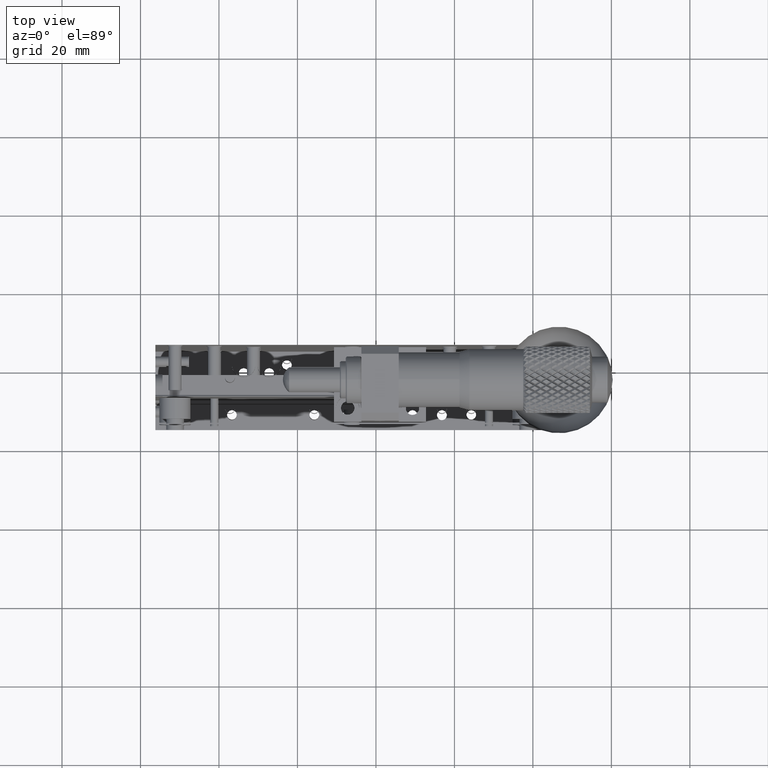
[diagram: clean part render]
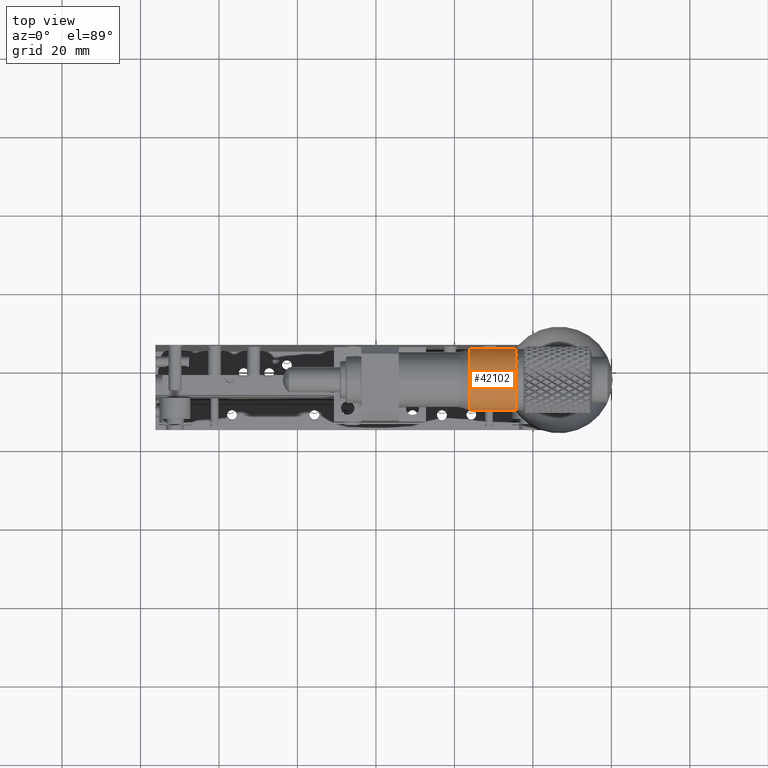
[diagram: same view with one face highlighted and labeled with its STEP entity id]
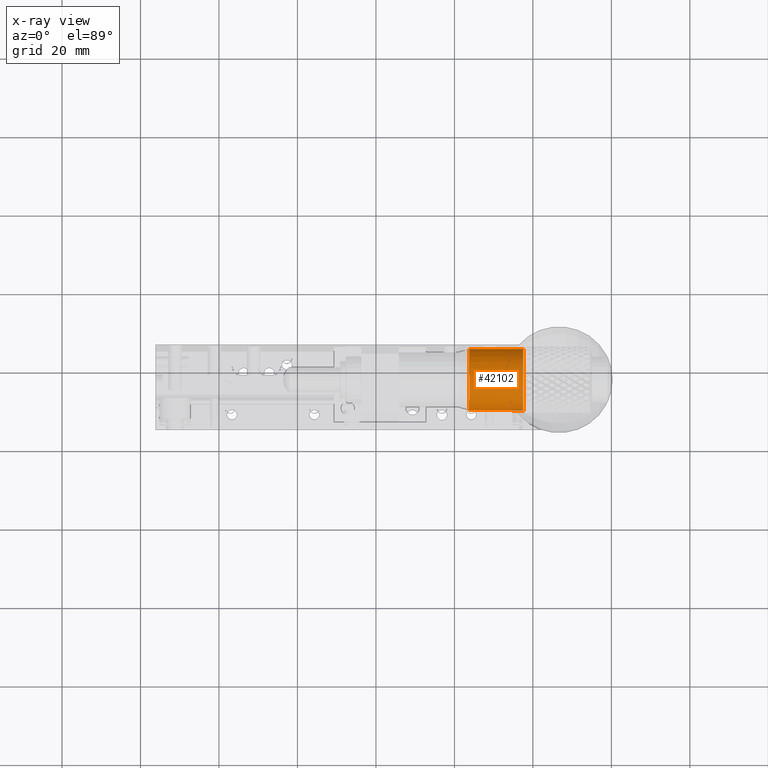
[diagram: x-ray of the same camera — body ghosted, the highlighted face saturated]
A machine part, top view. The second image highlights one B-rep face of the part: STEP entity #42102.
The next image is the same camera in x-ray: the body ghosted, the highlighted face saturated — about 0% of this face is hidden behind the body in this view.
In plain terms, the highlighted cylindrical surface (bore or boss wall) has radius 7.8221 mm, axis along (-1, 0, 0).
Its self-contained STEP definition (entity closure, byte-faithful):
#462 = VERTEX_POINT ( 'NONE', #5882 ) ;
#802 = VERTEX_POINT ( 'NONE', #19668 ) ;
#1454 = CARTESIAN_POINT ( 'NONE',  ( 57.55369935356767996, 0.4337154785879657748, 60.54961840201269752 ) ) ;
#1654 = CIRCLE ( 'NONE', #18806, 7.822099999981449336 ) ;
#1799 = VERTEX_POINT ( 'NONE', #6834 ) ;
#2249 = CARTESIAN_POINT ( 'NONE',  ( 57.55369935356767996, 3.807587904270797630, 67.60668813844910119 ) ) ;
#2416 = CARTESIAN_POINT ( 'NONE',  ( 57.55369935356768707, -10.65669464671202249, 71.09306715424322931 ) ) ;
#2504 = DIRECTION ( 'NONE',  ( 0.000000000000000000, 0.3818493186865933864, -0.9242245927363026414 ) ) ;
#2667 = CARTESIAN_POINT ( 'NONE',  ( 57.55369935355760447, -3.990949976602917282, 67.00001250000005371 ) ) ;
#2748 = CIRCLE ( 'NONE', #35576, 7.822099999981449336 ) ;
#2983 = AXIS2_PLACEMENT_3D ( 'NONE', #91526, #46005, #2504 ) ;
#3017 = CARTESIAN_POINT ( 'NONE',  ( 57.55369935356767996, -9.943504660300996889, 61.92533604259968172 ) ) ;
#3818 = DIRECTION ( 'NONE',  ( 0.000000000000000000, -0.3818493186865933864, 0.9242245927363026414 ) ) ;
#4135 = VERTEX_POINT ( 'NONE', #6784 ) ;
#4448 = EDGE_CURVE ( 'NONE', #26956, #26956, #60399, .T. ) ;
#4508 = DIRECTION ( 'NONE',  ( 0.000000000000000000, 0.3818493186865933864, -0.9242245927363026414 ) ) ;
#4941 = AXIS2_PLACEMENT_3D ( 'NONE', #46284, #32144, #47253 ) ;
#5686 = EDGE_CURVE ( 'NONE', #74095, #65963, #66708, .T. ) ;
#5882 = CARTESIAN_POINT ( 'NONE',  ( 57.55369935356768707, -11.74520605177912103, 68.02800137654621437 ) ) ;
#6118 = ORIENTED_EDGE ( 'NONE', *, *, #96749, .F. ) ;
#6146 = CIRCLE ( 'NONE', #54489, 7.822099999981449336 ) ;
#6784 = CARTESIAN_POINT ( 'NONE',  ( 57.55369935356767996, -7.364822402285803093, 59.94294276356362872 ) ) ;
#6834 = CARTESIAN_POINT ( 'NONE',  ( 57.55369935356768707, -2.158052059360662689, 74.60433585153364788 ) ) ;
#6976 = EDGE_CURVE ( 'NONE', #7968, #70728, #29211, .T. ) ;
#6978 = EDGE_CURVE ( 'NONE', #79488, #1799, #83849, .T. ) ;
#7159 = DIRECTION ( 'NONE',  ( 1.000000000000000000, -2.318699126153318340E-17, -6.634309868688037287E-17 ) ) ;
#7968 = VERTEX_POINT ( 'NONE', #35409 ) ;
#8277 = AXIS2_PLACEMENT_3D ( 'NONE', #55827, #10872, #93029 ) ;
#8501 = ORIENTED_EDGE ( 'NONE', *, *, #62010, .F. ) ;
#8804 = FACE_OUTER_BOUND ( 'NONE', #74658, .T. ) ;
#8913 = CARTESIAN_POINT ( 'NONE',  ( 57.55369935356768707, 0.7764425428819973218, 73.20140081027932411 ) ) ;
#9008 = DIRECTION ( 'NONE',  ( 1.000000000000000000, -2.318699126153318340E-17, -6.634309868688037287E-17 ) ) ;
#9079 = DIRECTION ( 'NONE',  ( 0.000000000000000000, 0.3818493186865933864, -0.9242245927363026414 ) ) ;
#9753 = EDGE_CURVE ( 'NONE', #802, #87905, #16843, .T. ) ;
#10567 = DIRECTION ( 'NONE',  ( 1.000000000000000000, -2.318699126153318340E-17, -6.634309868688037287E-17 ) ) ;
#10872 = DIRECTION ( 'NONE',  ( 1.000000000000000000, -2.318699126153318340E-17, -6.634309868688037287E-17 ) ) ;
#11322 = CIRCLE ( 'NONE', #8277, 7.822099999981449336 ) ;
#12266 = DIRECTION ( 'NONE',  ( 0.000000000000000000, 0.3818493186865933864, -0.9242245927363026414 ) ) ;
#12763 = CIRCLE ( 'NONE', #4941, 7.822099999981449336 ) ;
#13099 = DIRECTION ( 'NONE',  ( 1.000000000000000000, -2.318699126153318340E-17, -6.634309868688037287E-17 ) ) ;
#13372 = CARTESIAN_POINT ( 'NONE',  ( 57.55369935355760447, -3.990949976602917282, 67.00001250000005371 ) ) ;
#13384 = CARTESIAN_POINT ( 'NONE',  ( 57.55369935355760447, -3.990949976602917282, 67.00001250000005371 ) ) ;
#13885 = DIRECTION ( 'NONE',  ( 0.000000000000000000, 0.3818493186865933864, -0.9242245927363026414 ) ) ;
#14164 = ORIENTED_EDGE ( 'NONE', *, *, #55821, .F. ) ;
#14454 = CARTESIAN_POINT ( 'NONE',  ( 57.55369935355760447, -3.990949976602917282, 67.00001250000005371 ) ) ;
#14542 = EDGE_CURVE ( 'NONE', #18816, #62886, #51292, .T. ) ;
#14876 = ORIENTED_EDGE ( 'NONE', *, *, #5686, .F. ) ;
#15401 = DIRECTION ( 'NONE',  ( 1.000000000000000000, -2.318699126153318340E-17, -6.634309868688037287E-17 ) ) ;
#15501 = DIRECTION ( 'NONE',  ( 0.000000000000000000, 0.3818493186865933864, -0.9242245927363026414 ) ) ;
#15521 = CARTESIAN_POINT ( 'NONE',  ( 57.55369935355760447, -3.990949976602917282, 67.00001250000005371 ) ) ;
#15530 = EDGE_CURVE ( 'NONE', #53095, #45606, #6146, .T. ) ;
#15778 = AXIS2_PLACEMENT_3D ( 'NONE', #80972, #34057, #71733 ) ;
#15868 = CARTESIAN_POINT ( 'NONE',  ( 57.55369935355760447, -3.990949976602917282, 67.00001250000005371 ) ) ;
#15987 = VERTEX_POINT ( 'NONE', #67982 ) ;
#16299 = CARTESIAN_POINT ( 'NONE',  ( 57.55369935355760447, -3.990949976602917282, 67.00001250000005371 ) ) ;
#16329 = DIRECTION ( 'NONE',  ( 1.000000000000000000, -2.318699126153318340E-17, -6.634309868688037287E-17 ) ) ;
#16843 = CIRCLE ( 'NONE', #48041, 7.822099999981449336 ) ;
#16848 = EDGE_CURVE ( 'NONE', #78755, #93926, #56113, .T. ) ;
#17050 = ORIENTED_EDGE ( 'NONE', *, *, #40417, .F. ) ;
#17338 = AXIS2_PLACEMENT_3D ( 'NONE', #13372, #95064, #28060 ) ;
#17818 = CARTESIAN_POINT ( 'NONE',  ( 57.55369935356767996, -10.86851162131018356, 63.27383560766645587 ) ) ;
#18806 = AXIS2_PLACEMENT_3D ( 'NONE', #14454, #75075, #37411 ) ;
#18816 = VERTEX_POINT ( 'NONE', #31908 ) ;
#19668 = CARTESIAN_POINT ( 'NONE',  ( 57.55369935356768707, -11.78948785747660466, 66.39333686155093517 ) ) ;
#20033 = DIRECTION ( 'NONE',  ( 0.000000000000000000, 0.3818493186865933864, -0.9242245927363026414 ) ) ;
#20117 = DIRECTION ( 'NONE',  ( 0.000000000000000000, 0.3818493186865933864, -0.9242245927363026414 ) ) ;
#21766 = EDGE_CURVE ( 'NONE', #62886, #47619, #73544, .T. ) ;
#22231 = AXIS2_PLACEMENT_3D ( 'NONE', #61610, #24448, #83632 ) ;
#22727 = DIRECTION ( 'NONE',  ( 0.000000000000000000, 0.3818493186865933864, -0.9242245927363026414 ) ) ;
#23331 = DIRECTION ( 'NONE',  ( 1.000000000000000000, -2.318699126153318340E-17, -6.634309868688037287E-17 ) ) ;
#24448 = DIRECTION ( 'NONE',  ( 1.000000000000000000, -2.318699126153318340E-17, -6.634309868688037287E-17 ) ) ;
#25577 = CARTESIAN_POINT ( 'NONE',  ( 57.55369935355760447, -3.990949976602917282, 67.00001250000005371 ) ) ;
#26680 = CIRCLE ( 'NONE', #86009, 7.822099999981449336 ) ;
#26822 = DIRECTION ( 'NONE',  ( 1.000000000000000000, -2.318699126153318340E-17, -6.634309868688037287E-17 ) ) ;
#26956 = VERTEX_POINT ( 'NONE', #63138 ) ;
#27355 = CARTESIAN_POINT ( 'NONE',  ( 57.55369935356768707, -3.779133002004747777, 74.81924404657682715 ) ) ;
#27905 = EDGE_CURVE ( 'NONE', #67011, #74095, #92274, .T. ) ;
#28060 = DIRECTION ( 'NONE',  ( 0.000000000000000000, 0.3818493186865933864, -0.9242245927363026414 ) ) ;
#28513 = EDGE_CURVE ( 'NONE', #462, #802, #26680, .T. ) ;
#28792 = CARTESIAN_POINT ( 'NONE',  ( 57.55369935356767996, 3.380126093341670135, 64.38228715520155276 ) ) ;
#28914 = CARTESIAN_POINT ( 'NONE',  ( 57.55369935356768707, -6.977813532294232957, 74.22938968682551319 ) ) ;
#29211 = CIRCLE ( 'NONE', #82323, 7.822099999981449336 ) ;
#30124 = ORIENTED_EDGE ( 'NONE', *, *, #74844, .F. ) ;
#30143 = ORIENTED_EDGE ( 'NONE', *, *, #39739, .F. ) ;
#30172 = CARTESIAN_POINT ( 'NONE',  ( 57.55369935355760447, -3.990949976602917282, 67.00001250000005371 ) ) ;
#30460 = EDGE_CURVE ( 'NONE', #92439, #89317, #72068, .T. ) ;
#30623 = CIRCLE ( 'NONE', #68139, 7.822099999981449336 ) ;
#31130 = ORIENTED_EDGE ( 'NONE', *, *, #15530, .F. ) ;
#31602 = DIRECTION ( 'NONE',  ( 1.000000000000000000, -2.318699126153318340E-17, -6.634309868688037287E-17 ) ) ;
#31841 = DIRECTION ( 'NONE',  ( 0.000000000000000000, 0.3818493186865933864, -0.9242245927363026414 ) ) ;
#31908 = CARTESIAN_POINT ( 'NONE',  ( 57.55369935356768707, -9.660038219001068072, 72.38951033464221041 ) ) ;
#31950 = EDGE_CURVE ( 'NONE', #39076, #15987, #12763, .T. ) ;
#32144 = DIRECTION ( 'NONE',  ( 1.000000000000000000, -2.318699126153318340E-17, -6.634309868688037287E-17 ) ) ;
#32248 = CARTESIAN_POINT ( 'NONE',  ( 14.00369935356768458, -3.990949976602917282, 67.00001250000006792 ) ) ;
#32568 = CARTESIAN_POINT ( 'NONE',  ( 57.55369935355760447, -3.990949976602917282, 67.00001250000005371 ) ) ;
#34057 = DIRECTION ( 'NONE',  ( 1.000000000000000000, -2.318699126153318340E-17, -6.634309868688037287E-17 ) ) ;
#35022 = DIRECTION ( 'NONE',  ( 0.000000000000000000, 0.3818493186865933864, -0.9242245927363026414 ) ) ;
#35129 = EDGE_CURVE ( 'NONE', #1799, #67690, #93655, .T. ) ;
#35409 = CARTESIAN_POINT ( 'NONE',  ( 57.55369935356767996, 1.678138265795242168, 61.61051466535788279 ) ) ;
#35576 = AXIS2_PLACEMENT_3D ( 'NONE', #90706, #9008, #22727 ) ;
#35580 = CARTESIAN_POINT ( 'NONE',  ( 57.55369935355760447, -3.990949976602917282, 67.00001250000005371 ) ) ;
#35729 = AXIS2_PLACEMENT_3D ( 'NONE', #16299, #46059, #75942 ) ;
#37320 = DIRECTION ( 'NONE',  ( 0.000000000000000000, 0.3818493186865933864, -0.9242245927363026414 ) ) ;
#37339 = CIRCLE ( 'NONE', #2983, 7.822099999981449336 ) ;
#37400 = DIRECTION ( 'NONE',  ( 0.000000000000000000, 0.3818493186865933864, -0.9242245927363026414 ) ) ;
#37411 = DIRECTION ( 'NONE',  ( 0.000000000000000000, 0.3818493186865933864, -0.9242245927363026414 ) ) ;
#37450 = CARTESIAN_POINT ( 'NONE',  ( 57.55369935356768707, -11.36202604654746828, 69.61773784479849780 ) ) ;
#37513 = VERTEX_POINT ( 'NONE', #8913 ) ;
#37582 = CARTESIAN_POINT ( 'NONE',  ( 57.55369935356768707, -5.409471362849379794, 74.69241430219884137 ) ) ;
#38578 = DIRECTION ( 'NONE',  ( 0.000000000000000000, 0.3818493186865933864, -0.9242245927363026414 ) ) ;
#38611 = CYLINDRICAL_SURFACE ( 'NONE', #82984, 7.822100000000000719 ) ;
#38948 = AXIS2_PLACEMENT_3D ( 'NONE', #81016, #64053, #96672 ) ;
#39076 = VERTEX_POINT ( 'NONE', #74551 ) ;
#39431 = AXIS2_PLACEMENT_3D ( 'NONE', #2667, #55454, #83878 ) ;
#39499 = ORIENTED_EDGE ( 'NONE', *, *, #35129, .F. ) ;
#39739 = EDGE_CURVE ( 'NONE', #93926, #37513, #1654, .T. ) ;
#40417 = EDGE_CURVE ( 'NONE', #53582, #87143, #50037, .T. ) ;
#40745 = AXIS2_PLACEMENT_3D ( 'NONE', #54793, #84639, #31841 ) ;
#41108 = CIRCLE ( 'NONE', #42669, 7.822099999981449336 ) ;
#41452 = CARTESIAN_POINT ( 'NONE',  ( 43.81269935356769452, -3.990949976602917282, 67.00001250000005371 ) ) ;
#41657 = EDGE_CURVE ( 'NONE', #70115, #92439, #57962, .T. ) ;
#42102 = ADVANCED_FACE ( 'NONE', ( #92409, #8804 ), #38611, .T. ) ;
#42669 = AXIS2_PLACEMENT_3D ( 'NONE', #90858, #84924, #69795 ) ;
#43360 = ORIENTED_EDGE ( 'NONE', *, *, #72200, .F. ) ;
#43400 = AXIS2_PLACEMENT_3D ( 'NONE', #68227, #15401, #37400 ) ;
#43439 = CARTESIAN_POINT ( 'NONE',  ( 57.55369935356767996, -8.758342496087877294, 60.79862418972075488 ) ) ;
#44019 = CARTESIAN_POINT ( 'NONE',  ( 57.55369935356767996, 2.674794693506143073, 62.90695784575681415 ) ) ;
#45606 = VERTEX_POINT ( 'NONE', #3017 ) ;
#46005 = DIRECTION ( 'NONE',  ( 1.000000000000000000, -2.318699126153318340E-17, -6.634309868688037287E-17 ) ) ;
#46059 = DIRECTION ( 'NONE',  ( 1.000000000000000000, -2.318699126153318340E-17, -6.634309868688037287E-17 ) ) ;
#46091 = DIRECTION ( 'NONE',  ( 0.000000000000000000, 0.3818493186865933864, -0.9242245927363026414 ) ) ;
#46284 = CARTESIAN_POINT ( 'NONE',  ( 57.55369935355760447, -3.990949976602917282, 67.00001250000005371 ) ) ;
#46707 = DIRECTION ( 'NONE',  ( 0.000000000000000000, 0.3818493186865933864, -0.9242245927363026414 ) ) ;
#47119 = EDGE_CURVE ( 'NONE', #37513, #79488, #59665, .T. ) ;
#47215 = CIRCLE ( 'NONE', #39431, 7.822099999981449336 ) ;
#47253 = DIRECTION ( 'NONE',  ( 0.000000000000000000, 0.3818493186865933864, -0.9242245927363026414 ) ) ;
#47619 = VERTEX_POINT ( 'NONE', #37450 ) ;
#48041 = AXIS2_PLACEMENT_3D ( 'NONE', #15521, #23331, #91757 ) ;
#49550 = AXIS2_PLACEMENT_3D ( 'NONE', #56757, #86606, #65574 ) ;
#49754 = CARTESIAN_POINT ( 'NONE',  ( 57.55369935356768707, -0.6170775509201127385, 74.05708223643648580 ) ) ;
#49792 = CARTESIAN_POINT ( 'NONE',  ( 57.55369935356767996, 3.511036183037514746, 69.21483801689142012 ) ) ;
#50037 = CIRCLE ( 'NONE', #15778, 7.822099999981449336 ) ;
#50947 = AXIS2_PLACEMENT_3D ( 'NONE', #41452, #71327, #3818 ) ;
#51020 = ORIENTED_EDGE ( 'NONE', *, *, #65974, .F. ) ;
#51176 = ORIENTED_EDGE ( 'NONE', *, *, #84071, .F. ) ;
#51262 = DIRECTION ( 'NONE',  ( 1.000000000000000000, -2.318699126153318340E-17, -6.634309868688037287E-17 ) ) ;
#51292 = CIRCLE ( 'NONE', #35729, 7.822099999981449336 ) ;
#51453 = AXIS2_PLACEMENT_3D ( 'NONE', #56787, #57268, #20117 ) ;
#51822 = DIRECTION ( 'NONE',  ( 1.000000000000000000, -2.318699126153318340E-17, -6.634309868688037287E-17 ) ) ;
#52041 = ORIENTED_EDGE ( 'NONE', *, *, #77789, .F. ) ;
#52117 = CARTESIAN_POINT ( 'NONE',  ( 57.55369935355760447, -3.990949976602917282, 67.00001250000005371 ) ) ;
#52199 = CIRCLE ( 'NONE', #80360, 7.822099999981449336 ) ;
#53095 = VERTEX_POINT ( 'NONE', #17818 ) ;
#53582 = VERTEX_POINT ( 'NONE', #28914 ) ;
#54236 = DIRECTION ( 'NONE',  ( 0.000000000000000000, -0.3818493186865933864, 0.9242245927363026414 ) ) ;
#54416 = EDGE_CURVE ( 'NONE', #69426, #4135, #64380, .T. ) ;
#54489 = AXIS2_PLACEMENT_3D ( 'NONE', #52117, #7159, #9079 ) ;
#54653 = ORIENTED_EDGE ( 'NONE', *, *, #31950, .F. ) ;
#54793 = CARTESIAN_POINT ( 'NONE',  ( 57.55369935355760447, -3.990949976602917282, 67.00001250000005371 ) ) ;
#55454 = DIRECTION ( 'NONE',  ( 1.000000000000000000, -2.318699126153318340E-17, -6.634309868688037287E-17 ) ) ;
#55821 = EDGE_CURVE ( 'NONE', #89317, #7968, #47215, .T. ) ;
#55827 = CARTESIAN_POINT ( 'NONE',  ( 57.55369935355760447, -3.990949976602917282, 67.00001250000005371 ) ) ;
#56005 = CIRCLE ( 'NONE', #62289, 7.822099999981449336 ) ;
#56113 = CIRCLE ( 'NONE', #38948, 7.822099999981449336 ) ;
#56237 = EDGE_CURVE ( 'NONE', #4135, #39076, #11322, .T. ) ;
#56757 = CARTESIAN_POINT ( 'NONE',  ( 57.55369935355760447, -3.990949976602917282, 67.00001250000005371 ) ) ;
#56787 = CARTESIAN_POINT ( 'NONE',  ( 57.55369935355760447, -3.990949976602917282, 67.00001250000005371 ) ) ;
#57268 = DIRECTION ( 'NONE',  ( 1.000000000000000000, -2.318699126153318340E-17, -6.634309868688037287E-17 ) ) ;
#57500 = EDGE_CURVE ( 'NONE', #70728, #67011, #41108, .T. ) ;
#57551 = AXIS2_PLACEMENT_3D ( 'NONE', #15868, #16329, #46091 ) ;
#57962 = CIRCLE ( 'NONE', #17338, 7.822099999981449336 ) ;
#58165 = VERTEX_POINT ( 'NONE', #49792 ) ;
#59193 = CARTESIAN_POINT ( 'NONE',  ( 57.55369935355760447, -3.990949976602917282, 67.00001250000005371 ) ) ;
#59665 = CIRCLE ( 'NONE', #65969, 7.822099999981449336 ) ;
#60399 = CIRCLE ( 'NONE', #50947, 7.822100000000000719 ) ;
#60821 = ORIENTED_EDGE ( 'NONE', *, *, #57500, .F. ) ;
#61610 = CARTESIAN_POINT ( 'NONE',  ( 57.55369935355760447, -3.990949976602917282, 67.00001250000005371 ) ) ;
#62010 = EDGE_CURVE ( 'NONE', #65963, #58165, #52199, .T. ) ;
#62289 = AXIS2_PLACEMENT_3D ( 'NONE', #66547, #96352, #38578 ) ;
#62886 = VERTEX_POINT ( 'NONE', #2416 ) ;
#63138 = CARTESIAN_POINT ( 'NONE',  ( 43.81269935356769452, -6.977813532301319732, 74.22938968684267991 ) ) ;
#64053 = DIRECTION ( 'NONE',  ( 1.000000000000000000, -2.318699126153318340E-17, -6.634309868688037287E-17 ) ) ;
#64380 = CIRCLE ( 'NONE', #22231, 7.822099999981449336 ) ;
#65281 = ORIENTED_EDGE ( 'NONE', *, *, #47119, .F. ) ;
#65443 = DIRECTION ( 'NONE',  ( 0.000000000000000000, 0.3818493186865933864, -0.9242245927363026414 ) ) ;
#65574 = DIRECTION ( 'NONE',  ( 0.000000000000000000, 0.3818493186865933864, -0.9242245927363026414 ) ) ;
#65963 = VERTEX_POINT ( 'NONE', #2249 ) ;
#65969 = AXIS2_PLACEMENT_3D ( 'NONE', #91105, #89659, #37320 ) ;
#65974 = EDGE_CURVE ( 'NONE', #47619, #462, #30623, .T. ) ;
#66547 = CARTESIAN_POINT ( 'NONE',  ( 57.55369935355760447, -3.990949976602917282, 67.00001250000005371 ) ) ;
#66708 = CIRCLE ( 'NONE', #77628, 7.822099999981449336 ) ;
#66811 = AXIS2_PLACEMENT_3D ( 'NONE', #32568, #10567, #46707 ) ;
#66983 = ORIENTED_EDGE ( 'NONE', *, *, #6976, .F. ) ;
#67011 = VERTEX_POINT ( 'NONE', #28792 ) ;
#67690 = VERTEX_POINT ( 'NONE', #27355 ) ;
#67982 = CARTESIAN_POINT ( 'NONE',  ( 57.55369935356767996, -4.202766951201149404, 59.18078095342326606 ) ) ;
#68139 = AXIS2_PLACEMENT_3D ( 'NONE', #30172, #31602, #15501 ) ;
#68227 = CARTESIAN_POINT ( 'NONE',  ( 57.55369935355760447, -3.990949976602917282, 67.00001250000005371 ) ) ;
#68502 = ORIENTED_EDGE ( 'NONE', *, *, #78793, .F. ) ;
#69426 = VERTEX_POINT ( 'NONE', #43439 ) ;
#69795 = DIRECTION ( 'NONE',  ( 0.000000000000000000, 0.3818493186865933864, -0.9242245927363026414 ) ) ;
#70115 = VERTEX_POINT ( 'NONE', #76293 ) ;
#70290 = DIRECTION ( 'NONE',  ( 1.000000000000000000, -2.318699126153318340E-17, -6.634309868688037287E-17 ) ) ;
#70728 = VERTEX_POINT ( 'NONE', #44019 ) ;
#71327 = DIRECTION ( 'NONE',  ( 1.000000000000000000, -2.318699126153318340E-17, -6.634309868688037287E-17 ) ) ;
#71479 = CIRCLE ( 'NONE', #49550, 7.822099999981449336 ) ;
#71733 = DIRECTION ( 'NONE',  ( 0.000000000000000000, 0.3818493186865933864, -0.9242245927363026414 ) ) ;
#71937 = AXIS2_PLACEMENT_3D ( 'NONE', #85419, #70290, #35022 ) ;
#72068 = CIRCLE ( 'NONE', #84524, 7.822099999981449336 ) ;
#72200 = EDGE_CURVE ( 'NONE', #45606, #69426, #2748, .T. ) ;
#72758 = ORIENTED_EDGE ( 'NONE', *, *, #30460, .F. ) ;
#73093 = CIRCLE ( 'NONE', #43400, 7.822099999981449336 ) ;
#73233 = ORIENTED_EDGE ( 'NONE', *, *, #56237, .F. ) ;
#73544 = CIRCLE ( 'NONE', #71937, 7.822099999981449336 ) ;
#74026 = ORIENTED_EDGE ( 'NONE', *, *, #41657, .F. ) ;
#74095 = VERTEX_POINT ( 'NONE', #78419 ) ;
#74289 = ORIENTED_EDGE ( 'NONE', *, *, #85389, .F. ) ;
#74551 = CARTESIAN_POINT ( 'NONE',  ( 57.55369935356767996, -5.823847893845244705, 59.39568914846649506 ) ) ;
#74658 = EDGE_LOOP ( 'NONE', ( #78409 ) ) ;
#74844 = EDGE_CURVE ( 'NONE', #87905, #53095, #73093, .T. ) ;
#74983 = DIRECTION ( 'NONE',  ( 1.000000000000000000, -2.318699126153318340E-17, -6.634309868688037287E-17 ) ) ;
#75075 = DIRECTION ( 'NONE',  ( 1.000000000000000000, -2.318699126153318340E-17, -6.634309868688037287E-17 ) ) ;
#75862 = ORIENTED_EDGE ( 'NONE', *, *, #54416, .F. ) ;
#75942 = DIRECTION ( 'NONE',  ( 0.000000000000000000, 0.3818493186865933864, -0.9242245927363026414 ) ) ;
#76293 = CARTESIAN_POINT ( 'NONE',  ( 57.55369935356767996, -2.572428590356500067, 59.30761069780124473 ) ) ;
#77628 = AXIS2_PLACEMENT_3D ( 'NONE', #25577, #85201, #4508 ) ;
#77789 = EDGE_CURVE ( 'NONE', #92122, #53582, #71479, .T. ) ;
#78409 = ORIENTED_EDGE ( 'NONE', *, *, #4448, .T. ) ;
#78419 = CARTESIAN_POINT ( 'NONE',  ( 57.55369935356767996, 3.763306098573303782, 65.97202362345386462 ) ) ;
#78755 = VERTEX_POINT ( 'NONE', #83947 ) ;
#78793 = EDGE_CURVE ( 'NONE', #15987, #70115, #82359, .T. ) ;
#79162 = AXIS2_PLACEMENT_3D ( 'NONE', #94768, #13099, #65443 ) ;
#79488 = VERTEX_POINT ( 'NONE', #49754 ) ;
#80119 = ORIENTED_EDGE ( 'NONE', *, *, #27905, .F. ) ;
#80360 = AXIS2_PLACEMENT_3D ( 'NONE', #59193, #51822, #12266 ) ;
#80972 = CARTESIAN_POINT ( 'NONE',  ( 57.55369935355760447, -3.990949976602917282, 67.00001250000005371 ) ) ;
#81016 = CARTESIAN_POINT ( 'NONE',  ( 57.55369935355760447, -3.990949976602917282, 67.00001250000005371 ) ) ;
#82323 = AXIS2_PLACEMENT_3D ( 'NONE', #35580, #26822, #95285 ) ;
#82349 = ORIENTED_EDGE ( 'NONE', *, *, #16848, .F. ) ;
#82359 = CIRCLE ( 'NONE', #66811, 7.822099999981449336 ) ;
#82468 = CARTESIAN_POINT ( 'NONE',  ( 57.55369935356767996, -1.004086420911610933, 59.77063531317459422 ) ) ;
#82984 = AXIS2_PLACEMENT_3D ( 'NONE', #32248, #84571, #54236 ) ;
#83632 = DIRECTION ( 'NONE',  ( 0.000000000000000000, 0.3818493186865933864, -0.9242245927363026414 ) ) ;
#83849 = CIRCLE ( 'NONE', #79162, 7.822099999981449336 ) ;
#83878 = DIRECTION ( 'NONE',  ( 0.000000000000000000, 0.3818493186865933864, -0.9242245927363026414 ) ) ;
#83947 = CARTESIAN_POINT ( 'NONE',  ( 57.55369935356767996, 2.886611668104347661, 70.72618939233366575 ) ) ;
#84071 = EDGE_CURVE ( 'NONE', #67690, #92122, #91897, .T. ) ;
#84524 = AXIS2_PLACEMENT_3D ( 'NONE', #13384, #74983, #13885 ) ;
#84571 = DIRECTION ( 'NONE',  ( -1.000000000000000000, 2.318699126153318340E-17, 6.634309868688037287E-17 ) ) ;
#84639 = DIRECTION ( 'NONE',  ( 1.000000000000000000, -2.318699126153318340E-17, -6.634309868688037287E-17 ) ) ;
#84924 = DIRECTION ( 'NONE',  ( 1.000000000000000000, -2.318699126153318340E-17, -6.634309868688037287E-17 ) ) ;
#85201 = DIRECTION ( 'NONE',  ( 1.000000000000000000, -2.318699126153318340E-17, -6.634309868688037287E-17 ) ) ;
#85389 = EDGE_CURVE ( 'NONE', #87143, #18816, #56005, .T. ) ;
#85419 = CARTESIAN_POINT ( 'NONE',  ( 57.55369935355760447, -3.990949976602917282, 67.00001250000005371 ) ) ;
#85450 = ORIENTED_EDGE ( 'NONE', *, *, #9753, .F. ) ;
#86003 = ORIENTED_EDGE ( 'NONE', *, *, #6978, .F. ) ;
#86009 = AXIS2_PLACEMENT_3D ( 'NONE', #94366, #51262, #20033 ) ;
#86135 = CARTESIAN_POINT ( 'NONE',  ( 57.55369935356768707, 1.961604707095171429, 72.07468895740041148 ) ) ;
#86558 = ORIENTED_EDGE ( 'NONE', *, *, #14542, .F. ) ;
#86606 = DIRECTION ( 'NONE',  ( 1.000000000000000000, -2.318699126153318340E-17, -6.634309868688037287E-17 ) ) ;
#86687 = ORIENTED_EDGE ( 'NONE', *, *, #28513, .F. ) ;
#87143 = VERTEX_POINT ( 'NONE', #96373 ) ;
#87905 = VERTEX_POINT ( 'NONE', #92370 ) ;
#89317 = VERTEX_POINT ( 'NONE', #1454 ) ;
#89659 = DIRECTION ( 'NONE',  ( 1.000000000000000000, -2.318699126153318340E-17, -6.634309868688037287E-17 ) ) ;
#90706 = CARTESIAN_POINT ( 'NONE',  ( 57.55369935355760447, -3.990949976602917282, 67.00001250000005371 ) ) ;
#90858 = CARTESIAN_POINT ( 'NONE',  ( 57.55369935355760447, -3.990949976602917282, 67.00001250000005371 ) ) ;
#91105 = CARTESIAN_POINT ( 'NONE',  ( 57.55369935355760447, -3.990949976602917282, 67.00001250000005371 ) ) ;
#91526 = CARTESIAN_POINT ( 'NONE',  ( 57.55369935355760447, -3.990949976602917282, 67.00001250000005371 ) ) ;
#91757 = DIRECTION ( 'NONE',  ( 0.000000000000000000, 0.3818493186865933864, -0.9242245927363026414 ) ) ;
#91897 = CIRCLE ( 'NONE', #57551, 7.822099999981449336 ) ;
#92122 = VERTEX_POINT ( 'NONE', #37582 ) ;
#92234 = EDGE_LOOP ( 'NONE', ( #43360, #31130, #30124, #85450, #86687, #51020, #96217, #86558, #74289, #17050, #52041, #51176, #39499, #86003, #65281, #30143, #82349, #6118, #8501, #14876, #80119, #60821, #66983, #14164, #72758, #74026, #68502, #54653, #73233, #75862 ) ) ;
#92274 = CIRCLE ( 'NONE', #40745, 7.822099999981449336 ) ;
#92370 = CARTESIAN_POINT ( 'NONE',  ( 57.55369935356767996, -11.49293613624332266, 64.78518698310863044 ) ) ;
#92409 = FACE_OUTER_BOUND ( 'NONE', #92234, .T. ) ;
#92439 = VERTEX_POINT ( 'NONE', #82468 ) ;
#93029 = DIRECTION ( 'NONE',  ( 0.000000000000000000, 0.3818493186865933864, -0.9242245927363026414 ) ) ;
#93655 = CIRCLE ( 'NONE', #51453, 7.822099999981449336 ) ;
#93926 = VERTEX_POINT ( 'NONE', #86135 ) ;
#94366 = CARTESIAN_POINT ( 'NONE',  ( 57.55369935355760447, -3.990949976602917282, 67.00001250000005371 ) ) ;
#94768 = CARTESIAN_POINT ( 'NONE',  ( 57.55369935355760447, -3.990949976602917282, 67.00001250000005371 ) ) ;
#95064 = DIRECTION ( 'NONE',  ( 1.000000000000000000, -2.318699126153318340E-17, -6.634309868688037287E-17 ) ) ;
#95285 = DIRECTION ( 'NONE',  ( 0.000000000000000000, 0.3818493186865933864, -0.9242245927363026414 ) ) ;
#96217 = ORIENTED_EDGE ( 'NONE', *, *, #21766, .F. ) ;
#96352 = DIRECTION ( 'NONE',  ( 1.000000000000000000, -2.318699126153318340E-17, -6.634309868688037287E-17 ) ) ;
#96373 = CARTESIAN_POINT ( 'NONE',  ( 57.55369935356768707, -8.415615431793854739, 73.45040659798739568 ) ) ;
#96672 = DIRECTION ( 'NONE',  ( 0.000000000000000000, 0.3818493186865933864, -0.9242245927363026414 ) ) ;
#96749 = EDGE_CURVE ( 'NONE', #58165, #78755, #37339, .T. ) ;